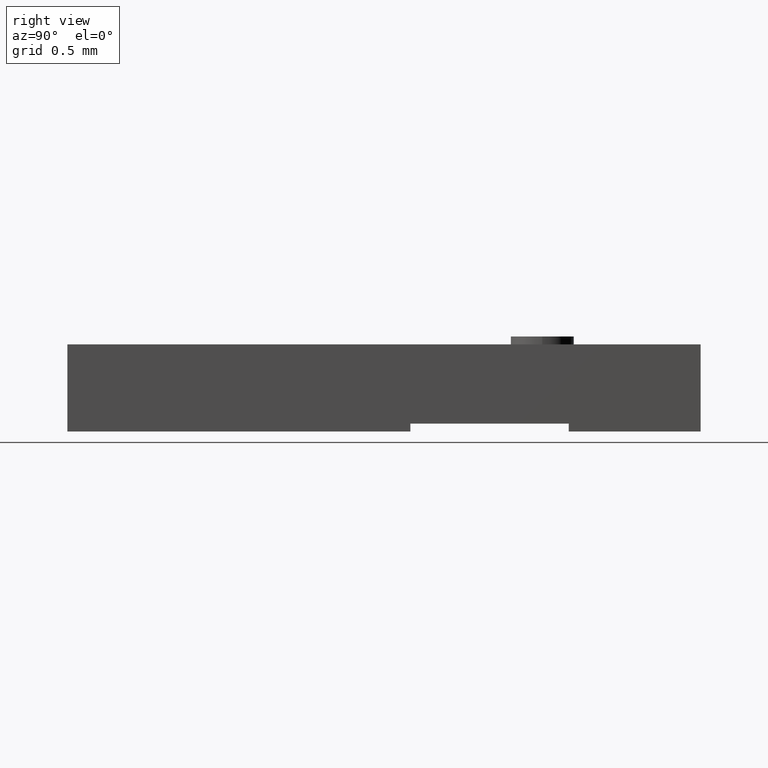
[diagram: clean part render]
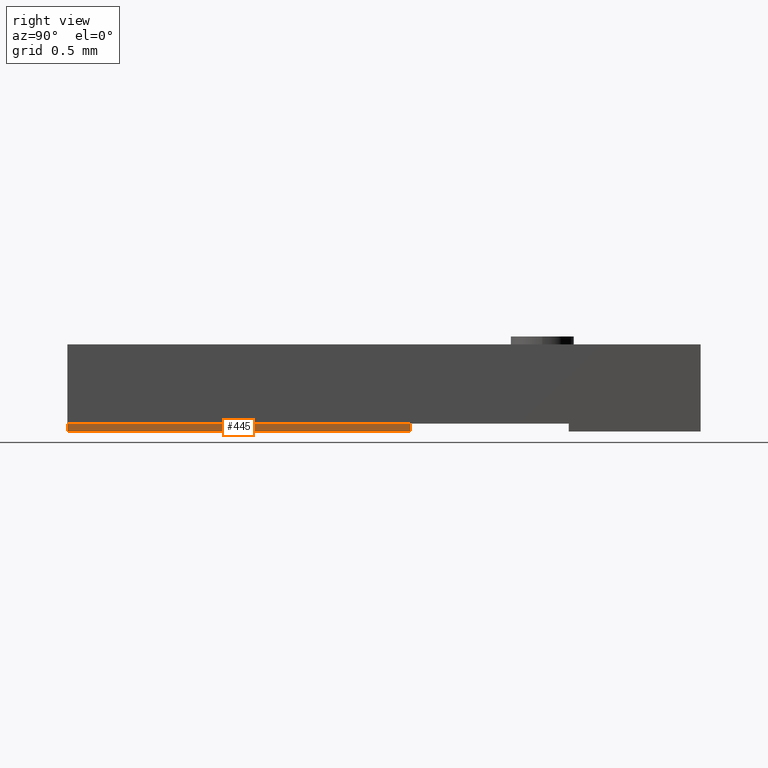
[diagram: same view with one face highlighted and labeled with its STEP entity id]
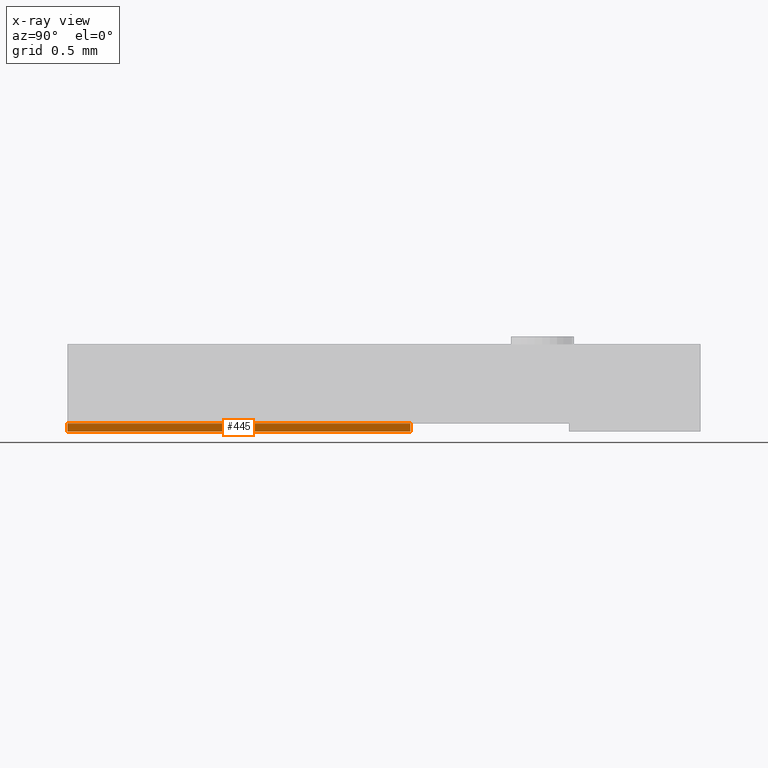
[diagram: x-ray of the same camera — body ghosted, the highlighted face saturated]
A machine part, right view. The second image highlights one B-rep face of the part: STEP entity #445.
The next image is the same camera in x-ray: the body ghosted, the highlighted face saturated — about 0% of this face is hidden behind the body in this view.
In plain terms, the highlighted planar face has unit normal (-1, 0, 0).
Its self-contained STEP definition (entity closure, byte-faithful):
#5 = DIRECTION ( 'NONE',  ( -3.334288087850889571E-05, -0.9999999994441259865, 0.000000000000000000 ) ) ;
#21 = ORIENTED_EDGE ( 'NONE', *, *, #150, .F. ) ;
#28 = LINE ( 'NONE', #591, #506 ) ;
#47 = DIRECTION ( 'NONE',  ( -0.9999999994441262086, 3.334288087850890248E-05, 0.000000000000000000 ) ) ;
#59 = ORIENTED_EDGE ( 'NONE', *, *, #144, .F. ) ;
#61 = CARTESIAN_POINT ( 'NONE',  ( 0.03049991361892523400, -0.05999999999984240162, 0.001500000000000004585 ) ) ;
#66 = VERTEX_POINT ( 'NONE', #259 ) ;
#69 = DIRECTION ( 'NONE',  ( -0.000000000000000000, -0.000000000000000000, -1.000000000000000000 ) ) ;
#91 = ORIENTED_EDGE ( 'NONE', *, *, #312, .T. ) ;
#126 = VERTEX_POINT ( 'NONE', #129 ) ;
#129 = CARTESIAN_POINT ( 'NONE',  ( 0.03050208090621708487, 0.005000001006212785939, 0.001500000000000004585 ) ) ;
#144 = EDGE_CURVE ( 'NONE', #126, #643, #28, .T. ) ;
#150 = EDGE_CURVE ( 'NONE', #229, #126, #540, .T. ) ;
#195 = VECTOR ( 'NONE', #493, 39.37007874015748143 ) ;
#214 = CARTESIAN_POINT ( 'NONE',  ( 0.03049991361892523400, -0.05999999999984240162, 0.09064170441960506253 ) ) ;
#229 = VERTEX_POINT ( 'NONE', #61 ) ;
#246 = CARTESIAN_POINT ( 'NONE',  ( 0.03049991361892523400, -0.05999999999984240162, 0.09064170441960506253 ) ) ;
#259 = CARTESIAN_POINT ( 'NONE',  ( 0.03049991361892523400, -0.05999999999984240162, 0.000000000000000000 ) ) ;
#266 = CARTESIAN_POINT ( 'NONE',  ( 0.03049991361892523400, -0.05999999999984240162, 0.001500000000000004585 ) ) ;
#301 = VECTOR ( 'NONE', #385, 39.37007874015748854 ) ;
#312 = EDGE_CURVE ( 'NONE', #229, #66, #452, .T. ) ;
#324 = CARTESIAN_POINT ( 'NONE',  ( 0.03049991361892523400, -0.05999999999984240162, 0.000000000000000000 ) ) ;
#385 = DIRECTION ( 'NONE',  ( 3.334288087850889571E-05, 0.9999999994441262086, 0.000000000000000000 ) ) ;
#388 = LINE ( 'NONE', #324, #301 ) ;
#425 = FACE_OUTER_BOUND ( 'NONE', #634, .T. ) ;
#445 = ADVANCED_FACE ( 'NONE', ( #425 ), #467, .F. ) ;
#452 = LINE ( 'NONE', #246, #195 ) ;
#457 = AXIS2_PLACEMENT_3D ( 'NONE', #214, #47, #5 ) ;
#467 = PLANE ( 'NONE',  #457 ) ;
#481 = ORIENTED_EDGE ( 'NONE', *, *, #620, .T. ) ;
#489 = CARTESIAN_POINT ( 'NONE',  ( 0.03050208090621708487, 0.005000001006212785939, 0.000000000000000000 ) ) ;
#493 = DIRECTION ( 'NONE',  ( -0.000000000000000000, -0.000000000000000000, -1.000000000000000000 ) ) ;
#506 = VECTOR ( 'NONE', #69, 39.37007874015748143 ) ;
#540 = LINE ( 'NONE', #266, #542 ) ;
#542 = VECTOR ( 'NONE', #570, 39.37007874015748854 ) ;
#570 = DIRECTION ( 'NONE',  ( 3.334288087850889571E-05, 0.9999999994441259865, -0.000000000000000000 ) ) ;
#591 = CARTESIAN_POINT ( 'NONE',  ( 0.03050208090621708487, 0.005000001006212785939, 0.09064170441960506253 ) ) ;
#620 = EDGE_CURVE ( 'NONE', #66, #643, #388, .T. ) ;
#634 = EDGE_LOOP ( 'NONE', ( #21, #91, #481, #59 ) ) ;
#643 = VERTEX_POINT ( 'NONE', #489 ) ;